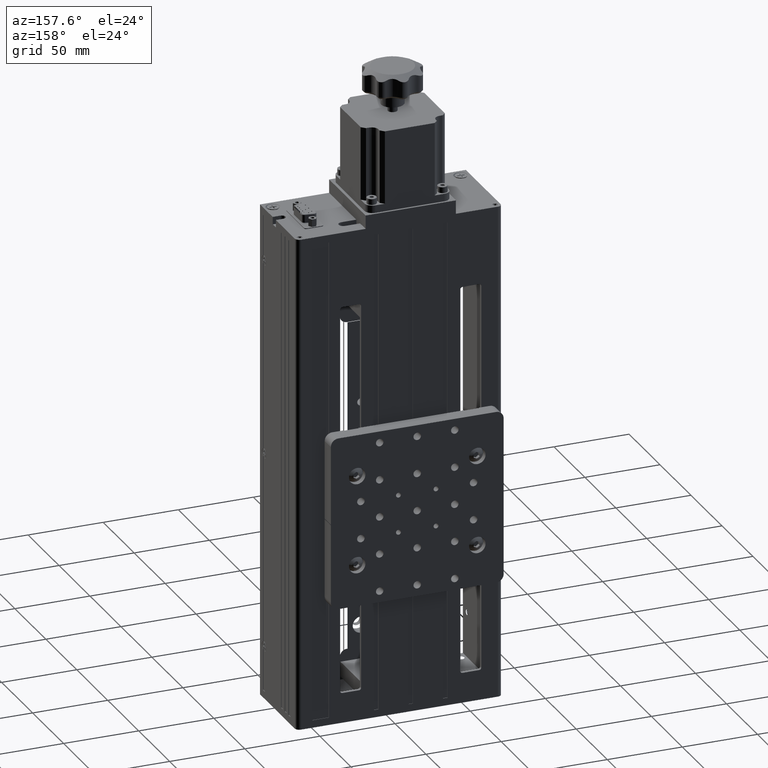
[diagram: clean part render]
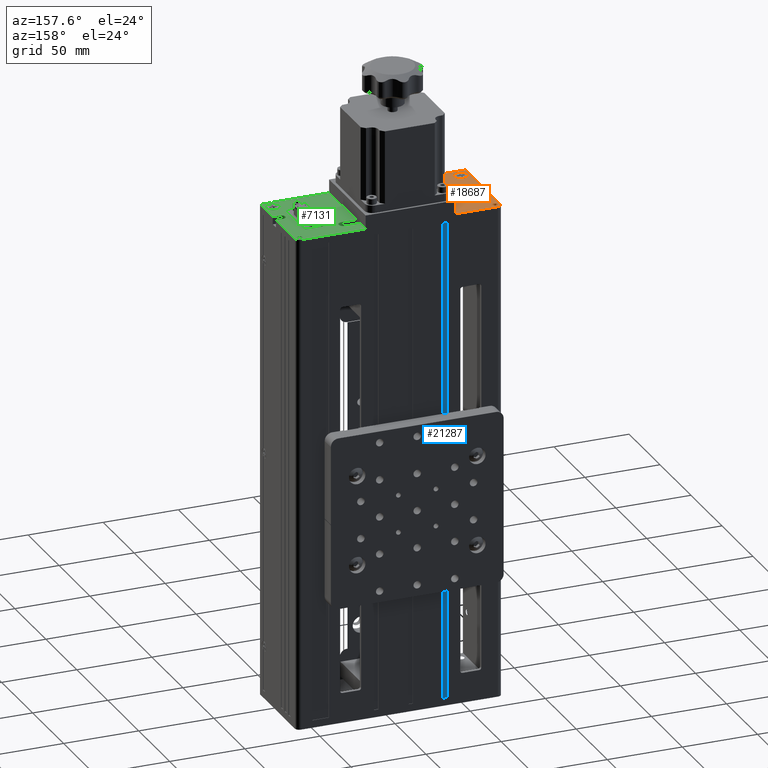
[diagram: same view with three faces highlighted in distinct colors, each labeled with its STEP entity id]
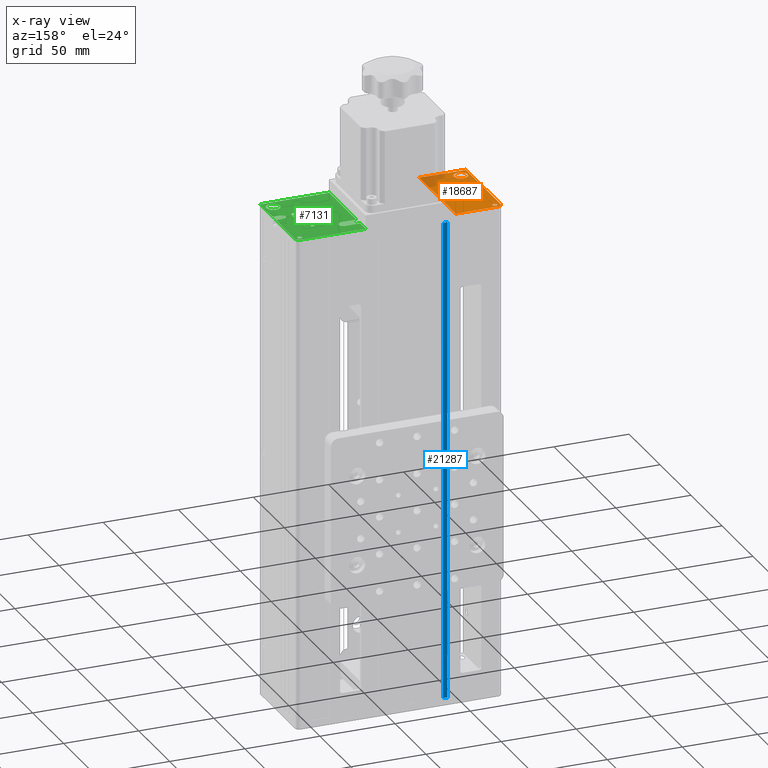
[diagram: x-ray of the same camera — body ghosted, the three highlighted faces saturated]
A machine part, auxiliary view with three faces highlighted in distinct colors.
The next image is the same camera in x-ray (body ghosted, the three faces saturated) — at least one of them is partly hidden behind the body in this view.
Their STEP definitions:

[orange] entity #18687 — the highlighted planar face has unit normal (0, 0, 1).
#150 = EDGE_LOOP ( 'NONE', ( #6136, #27126 ) ) ;
#406 = AXIS2_PLACEMENT_3D ( 'NONE', #34023, #14402, #37334 ) ;
#411 = CARTESIAN_POINT ( 'NONE',  ( -69.43011670107466700, 46.89557601279159400, 102.2392992934879300 ) ) ;
#784 = CIRCLE ( 'NONE', #24881, 3.000000000000002700 ) ;
#2652 = VECTOR ( 'NONE', #26707, 1000.000000000000000 ) ;
#2751 = EDGE_LOOP ( 'NONE', ( #8521, #25228 ) ) ;
#3940 = CARTESIAN_POINT ( 'NONE',  ( -69.98011670107466400, -2.104423987208394700, 102.2392992934879300 ) ) ;
#4119 = VECTOR ( 'NONE', #11053, 1000.000000000000000 ) ;
#4213 = DIRECTION ( 'NONE',  ( -0.0000000000000000000, -0.0000000000000000000, 1.000000000000000000 ) ) ;
#4555 = VECTOR ( 'NONE', #35136, 1000.000000000000000 ) ;
#5017 = FACE_OUTER_BOUND ( 'NONE', #6239, .T. ) ;
#6136 = ORIENTED_EDGE ( 'NONE', *, *, #29078, .F. ) ;
#6239 = EDGE_LOOP ( 'NONE', ( #18527, #20787, #20726, #23893, #7896 ) ) ;
#6473 = CIRCLE ( 'NONE', #37500, 4.699999999999995700 ) ;
#6759 = VERTEX_POINT ( 'NONE', #23510 ) ;
#7164 = CIRCLE ( 'NONE', #10221, 1.649999999999998600 ) ;
#7896 = ORIENTED_EDGE ( 'NONE', *, *, #15663, .T. ) ;
#8342 = EDGE_CURVE ( 'NONE', #34971, #18851, #13262, .T. ) ;
#8521 = ORIENTED_EDGE ( 'NONE', *, *, #29866, .F. ) ;
#9237 = DIRECTION ( 'NONE',  ( 0.0000000000000000000, 0.0000000000000000000, 1.000000000000000000 ) ) ;
#10221 = AXIS2_PLACEMENT_3D ( 'NONE', #18602, #41548, #21869 ) ;
#10228 = AXIS2_PLACEMENT_3D ( 'NONE', #23828, #4213, #27113 ) ;
#11053 = DIRECTION ( 'NONE',  ( 0.0000000000000000000, -1.000000000000000000, 0.0000000000000000000 ) ) ;
#11342 = LINE ( 'NONE', #13539, #2652 ) ;
#11429 = VERTEX_POINT ( 'NONE', #411 ) ;
#12224 = CARTESIAN_POINT ( 'NONE',  ( -40.28011670107467500, 50.39557601279160100, 102.2392992934879300 ) ) ;
#12685 = FACE_BOUND ( 'NONE', #150, .T. ) ;
#13038 = DIRECTION ( 'NONE',  ( -0.0000000000000000000, -0.0000000000000000000, 1.000000000000000000 ) ) ;
#13262 = LINE ( 'NONE', #12224, #4555 ) ;
#13539 = CARTESIAN_POINT ( 'NONE',  ( -40.28011670107466800, -8.604423987208388500, 102.2392992934879300 ) ) ;
#13725 = EDGE_CURVE ( 'NONE', #18124, #6759, #19660, .T. ) ;
#14402 = DIRECTION ( 'NONE',  ( 0.0000000000000000000, 0.0000000000000000000, 1.000000000000000000 ) ) ;
#15261 = CARTESIAN_POINT ( 'NONE',  ( -71.28011670107467500, 47.39557601279159400, 102.2392992934879300 ) ) ;
#15663 = EDGE_CURVE ( 'NONE', #18851, #38935, #37808, .T. ) ;
#16056 = DIRECTION ( 'NONE',  ( 0.0000000000000000000, 0.0000000000000000000, 1.000000000000000000 ) ) ;
#16607 = CARTESIAN_POINT ( 'NONE',  ( -66.13011670107467000, 46.89557601279159400, 102.2392992934879300 ) ) ;
#17877 = EDGE_CURVE ( 'NONE', #23350, #11429, #26156, .T. ) ;
#18124 = VERTEX_POINT ( 'NONE', #3940 ) ;
#18270 = CARTESIAN_POINT ( 'NONE',  ( -40.28011670107467500, 50.39557601279160100, 102.2392992934879300 ) ) ;
#18527 = ORIENTED_EDGE ( 'NONE', *, *, #19534, .T. ) ;
#18602 = CARTESIAN_POINT ( 'NONE',  ( -67.78011670107467500, 46.89557601279159400, 102.2392992934879300 ) ) ;
#18687 = ADVANCED_FACE ( 'NONE', ( #37834, #5017, #12685 ), #30584, .T. ) ;
#18851 = VERTEX_POINT ( 'NONE', #18270 ) ;
#19534 = EDGE_CURVE ( 'NONE', #38935, #20945, #784, .T. ) ;
#19619 = VERTEX_POINT ( 'NONE', #42415 ) ;
#19660 = CIRCLE ( 'NONE', #10228, 4.699999999999995700 ) ;
#20726 = ORIENTED_EDGE ( 'NONE', *, *, #36241, .T. ) ;
#20787 = ORIENTED_EDGE ( 'NONE', *, *, #28957, .T. ) ;
#20945 = VERTEX_POINT ( 'NONE', #15261 ) ;
#21260 = DIRECTION ( 'NONE',  ( -1.000000000000000000, 0.0000000000000000000, 0.0000000000000000000 ) ) ;
#21869 = DIRECTION ( 'NONE',  ( 1.000000000000000000, 0.0000000000000000000, 0.0000000000000000000 ) ) ;
#23350 = VERTEX_POINT ( 'NONE', #16607 ) ;
#23510 = CARTESIAN_POINT ( 'NONE',  ( -60.58011670107467200, -2.104423987208395200, 102.2392992934879300 ) ) ;
#23828 = CARTESIAN_POINT ( 'NONE',  ( -65.28011670107467500, -2.104423987208395200, 102.2392992934879300 ) ) ;
#23893 = ORIENTED_EDGE ( 'NONE', *, *, #8342, .T. ) ;
#24881 = AXIS2_PLACEMENT_3D ( 'NONE', #35677, #16056, #38964 ) ;
#24963 = VECTOR ( 'NONE', #21260, 1000.000000000000000 ) ;
#25228 = ORIENTED_EDGE ( 'NONE', *, *, #13725, .F. ) ;
#26156 = CIRCLE ( 'NONE', #38251, 1.649999999999998600 ) ;
#26707 = DIRECTION ( 'NONE',  ( 1.000000000000000000, 2.238352872228137700E-016, -0.0000000000000000000 ) ) ;
#27113 = DIRECTION ( 'NONE',  ( 1.000000000000000000, 0.0000000000000000000, 0.0000000000000000000 ) ) ;
#27126 = ORIENTED_EDGE ( 'NONE', *, *, #17877, .F. ) ;
#27354 = CARTESIAN_POINT ( 'NONE',  ( -71.28011670107467500, 47.39557601279159400, 102.2392992934879300 ) ) ;
#28910 = CARTESIAN_POINT ( 'NONE',  ( -67.78011670107467500, 46.89557601279159400, 102.2392992934879300 ) ) ;
#28957 = EDGE_CURVE ( 'NONE', #20945, #19619, #38973, .T. ) ;
#29018 = CARTESIAN_POINT ( 'NONE',  ( -68.28011670107467500, 50.39557601279160100, 102.2392992934879300 ) ) ;
#29078 = EDGE_CURVE ( 'NONE', #11429, #23350, #7164, .T. ) ;
#29444 = CARTESIAN_POINT ( 'NONE',  ( -40.28011670107466800, -8.604423987208388500, 102.2392992934879300 ) ) ;
#29866 = EDGE_CURVE ( 'NONE', #6759, #18124, #6473, .T. ) ;
#30584 = PLANE ( 'NONE',  #406 ) ;
#32162 = DIRECTION ( 'NONE',  ( 1.000000000000000000, 0.0000000000000000000, 0.0000000000000000000 ) ) ;
#32663 = CARTESIAN_POINT ( 'NONE',  ( -65.28011670107467500, -2.104423987208395200, 102.2392992934879300 ) ) ;
#34023 = CARTESIAN_POINT ( 'NONE',  ( -68.28011670107467500, 47.39557601279159400, 102.2392992934879300 ) ) ;
#34295 = CARTESIAN_POINT ( 'NONE',  ( -40.28011670107467500, 50.39557601279160100, 102.2392992934879300 ) ) ;
#34971 = VERTEX_POINT ( 'NONE', #29444 ) ;
#35136 = DIRECTION ( 'NONE',  ( -1.176083712526649200E-016, 1.000000000000000000, -0.0000000000000000000 ) ) ;
#35677 = CARTESIAN_POINT ( 'NONE',  ( -68.28011670107467500, 47.39557601279159400, 102.2392992934879300 ) ) ;
#35965 = DIRECTION ( 'NONE',  ( 1.000000000000000000, 0.0000000000000000000, 0.0000000000000000000 ) ) ;
#36241 = EDGE_CURVE ( 'NONE', #19619, #34971, #11342, .T. ) ;
#37334 = DIRECTION ( 'NONE',  ( 1.000000000000000000, 0.0000000000000000000, -0.0000000000000000000 ) ) ;
#37500 = AXIS2_PLACEMENT_3D ( 'NONE', #32663, #13038, #35965 ) ;
#37808 = LINE ( 'NONE', #34295, #24963 ) ;
#37834 = FACE_BOUND ( 'NONE', #2751, .T. ) ;
#38251 = AXIS2_PLACEMENT_3D ( 'NONE', #28910, #9237, #32162 ) ;
#38935 = VERTEX_POINT ( 'NONE', #29018 ) ;
#38964 = DIRECTION ( 'NONE',  ( 1.000000000000000000, 0.0000000000000000000, 0.0000000000000000000 ) ) ;
#38973 = LINE ( 'NONE', #27354, #4119 ) ;
#41548 = DIRECTION ( 'NONE',  ( 0.0000000000000000000, 0.0000000000000000000, 1.000000000000000000 ) ) ;
#42415 = CARTESIAN_POINT ( 'NONE',  ( -71.28011670107467500, -8.604423987208395600, 102.2392992934879300 ) ) ;

[blue] entity #21287 — the highlighted planar face has unit normal (0, 1, 0).
#890 = DIRECTION ( 'NONE',  ( 0.0000000000000000000, -0.0000000000000000000, 1.000000000000000000 ) ) ;
#8289 = VERTEX_POINT ( 'NONE', #21171 ) ;
#9421 = LINE ( 'NONE', #23555, #25811 ) ;
#11528 = AXIS2_PLACEMENT_3D ( 'NONE', #40154, #20480, #890 ) ;
#11600 = EDGE_CURVE ( 'NONE', #17947, #37883, #14884, .T. ) ;
#12668 = CARTESIAN_POINT ( 'NONE',  ( -34.78011670107464000, 50.09557601279237100, -222.7607007065120700 ) ) ;
#14884 = LINE ( 'NONE', #37208, #32291 ) ;
#17507 = LINE ( 'NONE', #19996, #18540 ) ;
#17569 = DIRECTION ( 'NONE',  ( 1.000000000000000000, 0.0000000000000000000, 0.0000000000000000000 ) ) ;
#17947 = VERTEX_POINT ( 'NONE', #12668 ) ;
#18540 = VECTOR ( 'NONE', #36338, 1000.000000000000000 ) ;
#19996 = CARTESIAN_POINT ( 'NONE',  ( -34.78011670107464000, 50.09557601279237100, 97.23929929348793200 ) ) ;
#20480 = DIRECTION ( 'NONE',  ( 0.0000000000000000000, 1.000000000000000000, 0.0000000000000000000 ) ) ;
#21091 = VERTEX_POINT ( 'NONE', #35859 ) ;
#21171 = CARTESIAN_POINT ( 'NONE',  ( -34.78011670107464000, 50.09557601279237100, 97.23929929348793200 ) ) ;
#21287 = ADVANCED_FACE ( 'NONE', ( #23088 ), #40008, .T. ) ;
#22103 = VECTOR ( 'NONE', #31660, 1000.000000000000000 ) ;
#23088 = FACE_OUTER_BOUND ( 'NONE', #26529, .T. ) ;
#23555 = CARTESIAN_POINT ( 'NONE',  ( -34.78011670107464000, 50.09557601279237100, 97.23929929348793200 ) ) ;
#25811 = VECTOR ( 'NONE', #36749, 1000.000000000000000 ) ;
#26529 = EDGE_LOOP ( 'NONE', ( #32806, #37612, #41376, #34759 ) ) ;
#28354 = EDGE_CURVE ( 'NONE', #8289, #17947, #17507, .T. ) ;
#30655 = EDGE_CURVE ( 'NONE', #8289, #21091, #9421, .T. ) ;
#31660 = DIRECTION ( 'NONE',  ( -0.0000000000000000000, -0.0000000000000000000, -1.000000000000000000 ) ) ;
#32291 = VECTOR ( 'NONE', #17569, 1000.000000000000000 ) ;
#32806 = ORIENTED_EDGE ( 'NONE', *, *, #11600, .F. ) ;
#34759 = ORIENTED_EDGE ( 'NONE', *, *, #35325, .T. ) ;
#34976 = CARTESIAN_POINT ( 'NONE',  ( -31.78011670107465400, 50.09557601279237100, 97.23929929348793200 ) ) ;
#35325 = EDGE_CURVE ( 'NONE', #21091, #37883, #40574, .T. ) ;
#35859 = CARTESIAN_POINT ( 'NONE',  ( -31.78011670107465400, 50.09557601279237100, 97.23929929348793200 ) ) ;
#36338 = DIRECTION ( 'NONE',  ( -0.0000000000000000000, -0.0000000000000000000, -1.000000000000000000 ) ) ;
#36749 = DIRECTION ( 'NONE',  ( 1.000000000000000000, 0.0000000000000000000, 0.0000000000000000000 ) ) ;
#37208 = CARTESIAN_POINT ( 'NONE',  ( -34.78011670107464000, 50.09557601279237100, -222.7607007065120700 ) ) ;
#37612 = ORIENTED_EDGE ( 'NONE', *, *, #28354, .F. ) ;
#37883 = VERTEX_POINT ( 'NONE', #40906 ) ;
#40008 = PLANE ( 'NONE',  #11528 ) ;
#40154 = CARTESIAN_POINT ( 'NONE',  ( -34.78011670107464000, 50.09557601279237100, 97.23929929348793200 ) ) ;
#40574 = LINE ( 'NONE', #34976, #22103 ) ;
#40906 = CARTESIAN_POINT ( 'NONE',  ( -31.78011670107465400, 50.09557601279237100, -222.7607007065120700 ) ) ;
#41376 = ORIENTED_EDGE ( 'NONE', *, *, #30655, .T. ) ;

[green] entity #7131 — the highlighted planar face has unit normal (0, 0, 1).
#334 = EDGE_CURVE ( 'NONE', #26870, #11991, #35482, .T. ) ;
#370 = DIRECTION ( 'NONE',  ( 0.0000000000000000000, 0.0000000000000000000, 1.000000000000000000 ) ) ;
#428 = DIRECTION ( 'NONE',  ( 1.000000000000000000, 0.0000000000000000000, 0.0000000000000000000 ) ) ;
#899 = CARTESIAN_POINT ( 'NONE',  ( 65.71988329892535300, 11.89557601279239300, 102.2392992934879300 ) ) ;
#944 = CARTESIAN_POINT ( 'NONE',  ( 29.71988329892531800, 38.39557601279239000, 102.2392992934879300 ) ) ;
#975 = DIRECTION ( 'NONE',  ( 1.577021341797097600E-016, -1.000000000000000000, 0.0000000000000000000 ) ) ;
#1294 = CARTESIAN_POINT ( 'NONE',  ( 51.71988329892533900, 30.89557601279239300, 102.2392992934879300 ) ) ;
#1392 = CARTESIAN_POINT ( 'NONE',  ( 29.71988329892531800, 38.39557601279239000, 102.2392992934879300 ) ) ;
#1468 = CARTESIAN_POINT ( 'NONE',  ( 60.71988329892534600, 11.89557601279239100, 102.2392992934879300 ) ) ;
#1548 = ORIENTED_EDGE ( 'NONE', *, *, #35636, .T. ) ;
#1736 = EDGE_CURVE ( 'NONE', #35500, #13263, #2828, .T. ) ;
#1764 = CARTESIAN_POINT ( 'NONE',  ( 42.71988329892534600, 28.89557601279239000, 102.2392992934879300 ) ) ;
#1884 = EDGE_CURVE ( 'NONE', #3114, #17157, #14535, .T. ) ;
#2194 = EDGE_CURVE ( 'NONE', #8828, #4174, #32418, .T. ) ;
#2344 = AXIS2_PLACEMENT_3D ( 'NONE', #18358, #41325, #21637 ) ;
#2828 = LINE ( 'NONE', #39347, #11537 ) ;
#2901 = VERTEX_POINT ( 'NONE', #13519 ) ;
#3036 = AXIS2_PLACEMENT_3D ( 'NONE', #1392, #24312, #4689 ) ;
#3114 = VERTEX_POINT ( 'NONE', #11678 ) ;
#3326 = CARTESIAN_POINT ( 'NONE',  ( 53.71988329892533900, 13.39557601279239300, 102.2392992934879300 ) ) ;
#3578 = CARTESIAN_POINT ( 'NONE',  ( 55.01988329892533600, -2.104423987207611400, 102.2392992934879300 ) ) ;
#3729 = DIRECTION ( 'NONE',  ( -0.0000000000000000000, -0.0000000000000000000, 1.000000000000000000 ) ) ;
#3788 = CIRCLE ( 'NONE', #36643, 2.000000000000001800 ) ;
#4174 = VERTEX_POINT ( 'NONE', #31752 ) ;
#4203 = DIRECTION ( 'NONE',  ( 0.0000000000000000000, 0.0000000000000000000, 1.000000000000000000 ) ) ;
#4215 = LINE ( 'NONE', #37131, #29351 ) ;
#4246 = DIRECTION ( 'NONE',  ( 1.000000000000000000, 0.0000000000000000000, -0.0000000000000000000 ) ) ;
#4529 = CARTESIAN_POINT ( 'NONE',  ( 48.21988329892533900, 8.645576012792391300, 102.2392992934879300 ) ) ;
#4608 = DIRECTION ( 'NONE',  ( 0.0000000000000000000, 0.0000000000000000000, 1.000000000000000000 ) ) ;
#4689 = DIRECTION ( 'NONE',  ( 1.000000000000000000, 0.0000000000000000000, 0.0000000000000000000 ) ) ;
#4772 = FACE_BOUND ( 'NONE', #35094, .T. ) ;
#4774 = CARTESIAN_POINT ( 'NONE',  ( 60.71988329892534600, 16.89557601279239300, 102.2392992934879300 ) ) ;
#4824 = VERTEX_POINT ( 'NONE', #8043 ) ;
#4863 = DIRECTION ( 'NONE',  ( 0.0000000000000000000, 0.0000000000000000000, 1.000000000000000000 ) ) ;
#5009 = EDGE_LOOP ( 'NONE', ( #10706, #40598, #5104, #11659, #6786, #18706, #28029, #34380, #1548, #20607, #23813, #35656, #32038 ) ) ;
#5104 = ORIENTED_EDGE ( 'NONE', *, *, #22881, .T. ) ;
#5165 = CARTESIAN_POINT ( 'NONE',  ( 49.35018329892533000, 8.645576012792391300, 102.2392992934879300 ) ) ;
#5632 = VECTOR ( 'NONE', #10810, 1000.000000000000000 ) ;
#5663 = AXIS2_PLACEMENT_3D ( 'NONE', #4529, #27459, #7828 ) ;
#5854 = EDGE_CURVE ( 'NONE', #2901, #33598, #25507, .T. ) ;
#5928 = CARTESIAN_POINT ( 'NONE',  ( 62.71988329892533200, 50.39557601279240400, 102.2392992934879300 ) ) ;
#6118 = EDGE_CURVE ( 'NONE', #17157, #3114, #18289, .T. ) ;
#6616 = ORIENTED_EDGE ( 'NONE', *, *, #16445, .F. ) ;
#6786 = ORIENTED_EDGE ( 'NONE', *, *, #334, .T. ) ;
#6874 = CARTESIAN_POINT ( 'NONE',  ( 48.21988329892533900, 33.64557601279239000, 102.2392992934879300 ) ) ;
#6897 = EDGE_CURVE ( 'NONE', #30154, #14425, #3788, .T. ) ;
#7131 = ADVANCED_FACE ( 'NONE', ( #30902, #39619, #24246, #22176, #13467, #4772 ), #27017, .T. ) ;
#7355 = CARTESIAN_POINT ( 'NONE',  ( 19.71988329892532500, 35.39557601279239000, 102.2392992934879300 ) ) ;
#7752 = ORIENTED_EDGE ( 'NONE', *, *, #2194, .F. ) ;
#7828 = DIRECTION ( 'NONE',  ( 1.000000000000000000, 0.0000000000000000000, 0.0000000000000000000 ) ) ;
#7851 = EDGE_CURVE ( 'NONE', #37849, #2901, #18482, .T. ) ;
#7865 = LINE ( 'NONE', #899, #41724 ) ;
#8043 = CARTESIAN_POINT ( 'NONE',  ( 65.71988329892535300, -8.604423987207603400, 102.2392992934879300 ) ) ;
#8067 = LINE ( 'NONE', #28339, #15750 ) ;
#8292 = ORIENTED_EDGE ( 'NONE', *, *, #1884, .F. ) ;
#8507 = CIRCLE ( 'NONE', #13125, 4.699999999999995700 ) ;
#8652 = CARTESIAN_POINT ( 'NONE',  ( 19.71988329892532500, 35.39557601279239000, 102.2392992934879300 ) ) ;
#8828 = VERTEX_POINT ( 'NONE', #34940 ) ;
#8903 = CARTESIAN_POINT ( 'NONE',  ( 59.71988329892533200, -2.104423987207611800, 102.2392992934879300 ) ) ;
#8978 = EDGE_CURVE ( 'NONE', #14918, #30154, #18294, .T. ) ;
#9394 = LINE ( 'NONE', #23903, #18118 ) ;
#9615 = AXIS2_PLACEMENT_3D ( 'NONE', #16185, #39115, #19492 ) ;
#9624 = CARTESIAN_POINT ( 'NONE',  ( 51.71988329892533900, 28.89557601279239300, 102.2392992934879300 ) ) ;
#9752 = ORIENTED_EDGE ( 'NONE', *, *, #19870, .F. ) ;
#9995 = CIRCLE ( 'NONE', #2344, 4.699999999999995700 ) ;
#10148 = DIRECTION ( 'NONE',  ( 1.000000000000000000, 0.0000000000000000000, 0.0000000000000000000 ) ) ;
#10224 = VERTEX_POINT ( 'NONE', #38451 ) ;
#10437 = LINE ( 'NONE', #33304, #41236 ) ;
#10610 = EDGE_CURVE ( 'NONE', #11991, #19705, #4215, .T. ) ;
#10650 = DIRECTION ( 'NONE',  ( -1.000000000000000000, -0.0000000000000000000, -0.0000000000000000000 ) ) ;
#10706 = ORIENTED_EDGE ( 'NONE', *, *, #7851, .F. ) ;
#10810 = DIRECTION ( 'NONE',  ( -6.195440985631452900E-017, 1.000000000000000000, -0.0000000000000000000 ) ) ;
#11022 = LINE ( 'NONE', #12215, #36107 ) ;
#11174 = EDGE_LOOP ( 'NONE', ( #19895, #8292 ) ) ;
#11232 = VERTEX_POINT ( 'NONE', #34789 ) ;
#11432 = CARTESIAN_POINT ( 'NONE',  ( 53.71988329892533900, 28.89557601279239300, 102.2392992934879300 ) ) ;
#11458 = CARTESIAN_POINT ( 'NONE',  ( 42.71988329892534600, 13.39557601279239100, 102.2392992934879300 ) ) ;
#11537 = VECTOR ( 'NONE', #23137, 1000.000000000000000 ) ;
#11659 = ORIENTED_EDGE ( 'NONE', *, *, #19979, .T. ) ;
#11678 = CARTESIAN_POINT ( 'NONE',  ( 47.08958329892535500, 8.645576012792391300, 102.2392992934879300 ) ) ;
#11881 = AXIS2_PLACEMENT_3D ( 'NONE', #33959, #14334, #37266 ) ;
#11991 = VERTEX_POINT ( 'NONE', #16536 ) ;
#12197 = DIRECTION ( 'NONE',  ( 1.000000000000000000, 0.0000000000000000000, 0.0000000000000000000 ) ) ;
#12215 = CARTESIAN_POINT ( 'NONE',  ( 44.71988329892534600, 11.39557601279239100, 102.2392992934879300 ) ) ;
#12331 = EDGE_LOOP ( 'NONE', ( #6616, #37246 ) ) ;
#12611 = CARTESIAN_POINT ( 'NONE',  ( 64.41988329892532800, -2.104423987207611800, 102.2392992934879300 ) ) ;
#12930 = DIRECTION ( 'NONE',  ( 1.000000000000000000, 0.0000000000000000000, 0.0000000000000000000 ) ) ;
#13041 = CARTESIAN_POINT ( 'NONE',  ( 47.08958329892535500, 33.64557601279239000, 102.2392992934879300 ) ) ;
#13125 = AXIS2_PLACEMENT_3D ( 'NONE', #8903, #31793, #12197 ) ;
#13159 = EDGE_CURVE ( 'NONE', #14425, #18280, #10437, .T. ) ;
#13263 = VERTEX_POINT ( 'NONE', #11432 ) ;
#13467 = FACE_BOUND ( 'NONE', #27361, .T. ) ;
#13519 = CARTESIAN_POINT ( 'NONE',  ( 60.71988329892534600, 16.89557601279239300, 102.2392992934879300 ) ) ;
#13625 = VECTOR ( 'NONE', #10650, 1000.000000000000000 ) ;
#13727 = EDGE_CURVE ( 'NONE', #33598, #19826, #7865, .T. ) ;
#13738 = CIRCLE ( 'NONE', #11881, 2.000000000000001800 ) ;
#14324 = EDGE_LOOP ( 'NONE', ( #32391, #26871 ) ) ;
#14334 = DIRECTION ( 'NONE',  ( 0.0000000000000000000, 0.0000000000000000000, 1.000000000000000000 ) ) ;
#14425 = VERTEX_POINT ( 'NONE', #1764 ) ;
#14535 = CIRCLE ( 'NONE', #5663, 1.130299999999986800 ) ;
#14698 = VERTEX_POINT ( 'NONE', #13041 ) ;
#14918 = VERTEX_POINT ( 'NONE', #1294 ) ;
#15023 = DIRECTION ( 'NONE',  ( -0.0000000000000000000, -0.0000000000000000000, 1.000000000000000000 ) ) ;
#15069 = CIRCLE ( 'NONE', #29417, 1.130299999999986800 ) ;
#15750 = VECTOR ( 'NONE', #31581, 1000.000000000000000 ) ;
#15964 = AXIS2_PLACEMENT_3D ( 'NONE', #944, #23873, #4246 ) ;
#16185 = CARTESIAN_POINT ( 'NONE',  ( 62.21988329892531800, 46.89557601279239000, 102.2392992934879300 ) ) ;
#16329 = CARTESIAN_POINT ( 'NONE',  ( 29.71988329892531800, 35.39557601279239000, 102.2392992934879300 ) ) ;
#16359 = EDGE_CURVE ( 'NONE', #4174, #8828, #27913, .T. ) ;
#16445 = EDGE_CURVE ( 'NONE', #36764, #14698, #15069, .T. ) ;
#16536 = CARTESIAN_POINT ( 'NONE',  ( 19.71988329892532500, 41.39557601279239700, 102.2392992934879300 ) ) ;
#17157 = VERTEX_POINT ( 'NONE', #5165 ) ;
#18118 = VECTOR ( 'NONE', #975, 1000.000000000000000 ) ;
#18159 = EDGE_CURVE ( 'NONE', #37849, #11232, #32779, .T. ) ;
#18280 = VERTEX_POINT ( 'NONE', #11458 ) ;
#18289 = CIRCLE ( 'NONE', #27554, 1.130299999999986800 ) ;
#18294 = LINE ( 'NONE', #22305, #34687 ) ;
#18358 = CARTESIAN_POINT ( 'NONE',  ( 59.71988329892533200, -2.104423987207611800, 102.2392992934879300 ) ) ;
#18442 = DIRECTION ( 'NONE',  ( -1.000000000000000000, -0.0000000000000000000, -0.0000000000000000000 ) ) ;
#18482 = LINE ( 'NONE', #4774, #28290 ) ;
#18706 = ORIENTED_EDGE ( 'NONE', *, *, #10610, .T. ) ;
#19404 = AXIS2_PLACEMENT_3D ( 'NONE', #19949, #370, #23240 ) ;
#19492 = DIRECTION ( 'NONE',  ( 1.000000000000000000, 0.0000000000000000000, 0.0000000000000000000 ) ) ;
#19705 = VERTEX_POINT ( 'NONE', #33201 ) ;
#19777 = ORIENTED_EDGE ( 'NONE', *, *, #36712, .F. ) ;
#19826 = VERTEX_POINT ( 'NONE', #34065 ) ;
#19870 = EDGE_CURVE ( 'NONE', #18280, #30489, #26331, .T. ) ;
#19895 = ORIENTED_EDGE ( 'NONE', *, *, #6118, .F. ) ;
#19949 = CARTESIAN_POINT ( 'NONE',  ( 62.21988329892531800, 46.89557601279239000, 102.2392992934879300 ) ) ;
#19979 = EDGE_CURVE ( 'NONE', #32276, #26870, #34526, .T. ) ;
#20008 = DIRECTION ( 'NONE',  ( 0.0000000000000000000, 0.0000000000000000000, 1.000000000000000000 ) ) ;
#20089 = ORIENTED_EDGE ( 'NONE', *, *, #6897, .F. ) ;
#20607 = ORIENTED_EDGE ( 'NONE', *, *, #36311, .T. ) ;
#20754 = ORIENTED_EDGE ( 'NONE', *, *, #24317, .F. ) ;
#20946 = CARTESIAN_POINT ( 'NONE',  ( 19.71988329892533200, -8.604423987207606900, 102.2392992934879300 ) ) ;
#20948 = CIRCLE ( 'NONE', #30993, 2.000000000000001800 ) ;
#21417 = ORIENTED_EDGE ( 'NONE', *, *, #26283, .F. ) ;
#21637 = DIRECTION ( 'NONE',  ( 1.000000000000000000, 0.0000000000000000000, 0.0000000000000000000 ) ) ;
#21761 = VERTEX_POINT ( 'NONE', #3578 ) ;
#22176 = FACE_BOUND ( 'NONE', #14324, .T. ) ;
#22305 = CARTESIAN_POINT ( 'NONE',  ( 44.71988329892534600, 30.89557601279239300, 102.2392992934879300 ) ) ;
#22876 = EDGE_CURVE ( 'NONE', #23302, #28558, #39769, .T. ) ;
#22881 = EDGE_CURVE ( 'NONE', #11232, #32276, #32080, .T. ) ;
#23063 = EDGE_CURVE ( 'NONE', #21761, #28650, #9995, .T. ) ;
#23137 = DIRECTION ( 'NONE',  ( -0.0000000000000000000, 1.000000000000000000, -0.0000000000000000000 ) ) ;
#23240 = DIRECTION ( 'NONE',  ( 1.000000000000000000, 0.0000000000000000000, 0.0000000000000000000 ) ) ;
#23302 = VERTEX_POINT ( 'NONE', #16329 ) ;
#23310 = CARTESIAN_POINT ( 'NONE',  ( 48.21988329892533900, 33.64557601279239000, 102.2392992934879300 ) ) ;
#23813 = ORIENTED_EDGE ( 'NONE', *, *, #29560, .T. ) ;
#23818 = CARTESIAN_POINT ( 'NONE',  ( 62.71988329892533200, 47.39557601279240400, 102.2392992934879300 ) ) ;
#23873 = DIRECTION ( 'NONE',  ( 0.0000000000000000000, 0.0000000000000000000, 1.000000000000000000 ) ) ;
#23903 = CARTESIAN_POINT ( 'NONE',  ( 19.71988329892532500, 35.39557601279239000, 102.2392992934879300 ) ) ;
#24068 = DIRECTION ( 'NONE',  ( 1.000000000000000000, 0.0000000000000000000, 0.0000000000000000000 ) ) ;
#24234 = CARTESIAN_POINT ( 'NONE',  ( 44.71988329892534600, 28.89557601279239300, 102.2392992934879300 ) ) ;
#24246 = FACE_BOUND ( 'NONE', #12331, .T. ) ;
#24272 = DIRECTION ( 'NONE',  ( 1.000000000000000000, 7.542275982507854700E-017, 0.0000000000000000000 ) ) ;
#24312 = DIRECTION ( 'NONE',  ( -0.0000000000000000000, -0.0000000000000000000, -1.000000000000000000 ) ) ;
#24317 = EDGE_CURVE ( 'NONE', #30489, #26165, #11022, .T. ) ;
#24477 = CARTESIAN_POINT ( 'NONE',  ( 44.71988329892534600, 13.39557601279239100, 102.2392992934879300 ) ) ;
#24547 = ORIENTED_EDGE ( 'NONE', *, *, #16359, .F. ) ;
#25230 = EDGE_CURVE ( 'NONE', #19705, #23302, #33951, .T. ) ;
#25507 = CIRCLE ( 'NONE', #31385, 2.500000000000002200 ) ;
#25807 = VECTOR ( 'NONE', #18442, 1000.000000000000000 ) ;
#26165 = VERTEX_POINT ( 'NONE', #29262 ) ;
#26283 = EDGE_CURVE ( 'NONE', #26165, #35500, #13738, .T. ) ;
#26299 = CARTESIAN_POINT ( 'NONE',  ( 44.71988329892534600, 11.39557601279239100, 102.2392992934879300 ) ) ;
#26331 = CIRCLE ( 'NONE', #36393, 2.000000000000001800 ) ;
#26606 = DIRECTION ( 'NONE',  ( 1.000000000000000000, 0.0000000000000000000, 0.0000000000000000000 ) ) ;
#26870 = VERTEX_POINT ( 'NONE', #27185 ) ;
#26871 = ORIENTED_EDGE ( 'NONE', *, *, #23063, .F. ) ;
#27017 = PLANE ( 'NONE',  #15964 ) ;
#27105 = DIRECTION ( 'NONE',  ( 1.000000000000000000, 0.0000000000000000000, 0.0000000000000000000 ) ) ;
#27116 = CARTESIAN_POINT ( 'NONE',  ( 65.71988329892533900, 47.39557601279240400, 102.2392992934879300 ) ) ;
#27185 = CARTESIAN_POINT ( 'NONE',  ( 19.71988329892532100, 50.39557601279240400, 102.2392992934879300 ) ) ;
#27361 = EDGE_LOOP ( 'NONE', ( #20754, #9752, #37081, #20089, #40715, #19777, #42297, #21417 ) ) ;
#27459 = DIRECTION ( 'NONE',  ( -0.0000000000000000000, -0.0000000000000000000, 1.000000000000000000 ) ) ;
#27538 = DIRECTION ( 'NONE',  ( -1.000000000000000000, 0.0000000000000000000, 0.0000000000000000000 ) ) ;
#27554 = AXIS2_PLACEMENT_3D ( 'NONE', #34618, #15023, #37940 ) ;
#27702 = AXIS2_PLACEMENT_3D ( 'NONE', #23310, #3729, #26606 ) ;
#27803 = DIRECTION ( 'NONE',  ( 1.000000000000000000, 0.0000000000000000000, 0.0000000000000000000 ) ) ;
#27913 = CIRCLE ( 'NONE', #9615, 1.649999999999998600 ) ;
#28029 = ORIENTED_EDGE ( 'NONE', *, *, #25230, .T. ) ;
#28290 = VECTOR ( 'NONE', #41186, 1000.000000000000000 ) ;
#28339 = CARTESIAN_POINT ( 'NONE',  ( 65.71988329892533900, 47.39557601279240400, 102.2392992934879300 ) ) ;
#28558 = VERTEX_POINT ( 'NONE', #8652 ) ;
#28650 = VERTEX_POINT ( 'NONE', #12611 ) ;
#28830 = CARTESIAN_POINT ( 'NONE',  ( 19.71988329892532100, 50.39557601279240400, 102.2392992934879300 ) ) ;
#29262 = CARTESIAN_POINT ( 'NONE',  ( 51.71988329892534600, 11.39557601279239100, 102.2392992934879300 ) ) ;
#29279 = CARTESIAN_POINT ( 'NONE',  ( 49.35018329892533000, 33.64557601279239000, 102.2392992934879300 ) ) ;
#29351 = VECTOR ( 'NONE', #24068, 1000.000000000000000 ) ;
#29417 = AXIS2_PLACEMENT_3D ( 'NONE', #6874, #29781, #10148 ) ;
#29560 = EDGE_CURVE ( 'NONE', #4824, #19826, #8067, .T. ) ;
#29781 = DIRECTION ( 'NONE',  ( -0.0000000000000000000, -0.0000000000000000000, 1.000000000000000000 ) ) ;
#30154 = VERTEX_POINT ( 'NONE', #34069 ) ;
#30489 = VERTEX_POINT ( 'NONE', #26299 ) ;
#30902 = FACE_OUTER_BOUND ( 'NONE', #5009, .T. ) ;
#30993 = AXIS2_PLACEMENT_3D ( 'NONE', #9624, #32561, #12930 ) ;
#31385 = AXIS2_PLACEMENT_3D ( 'NONE', #39655, #20008, #428 ) ;
#31509 = CIRCLE ( 'NONE', #27702, 1.130299999999986800 ) ;
#31581 = DIRECTION ( 'NONE',  ( -6.195440985631452900E-017, 1.000000000000000000, -0.0000000000000000000 ) ) ;
#31632 = EDGE_CURVE ( 'NONE', #28650, #21761, #8507, .T. ) ;
#31752 = CARTESIAN_POINT ( 'NONE',  ( 63.86988329892531600, 46.89557601279239000, 102.2392992934879300 ) ) ;
#31793 = DIRECTION ( 'NONE',  ( -0.0000000000000000000, -0.0000000000000000000, 1.000000000000000000 ) ) ;
#31867 = EDGE_CURVE ( 'NONE', #14698, #36764, #31509, .T. ) ;
#32038 = ORIENTED_EDGE ( 'NONE', *, *, #5854, .F. ) ;
#32080 = CIRCLE ( 'NONE', #36858, 3.000000000000002700 ) ;
#32276 = VERTEX_POINT ( 'NONE', #5928 ) ;
#32391 = ORIENTED_EDGE ( 'NONE', *, *, #31632, .F. ) ;
#32418 = CIRCLE ( 'NONE', #19404, 1.649999999999998600 ) ;
#32561 = DIRECTION ( 'NONE',  ( 0.0000000000000000000, 0.0000000000000000000, 1.000000000000000000 ) ) ;
#32779 = LINE ( 'NONE', #27116, #5632 ) ;
#33201 = CARTESIAN_POINT ( 'NONE',  ( 29.71988329892531800, 41.39557601279239700, 102.2392992934879300 ) ) ;
#33304 = CARTESIAN_POINT ( 'NONE',  ( 42.71988329892534600, 28.89557601279239000, 102.2392992934879300 ) ) ;
#33598 = VERTEX_POINT ( 'NONE', #1468 ) ;
#33951 = CIRCLE ( 'NONE', #3036, 3.000000000000002700 ) ;
#33959 = CARTESIAN_POINT ( 'NONE',  ( 51.71988329892534600, 13.39557601279239100, 102.2392992934879300 ) ) ;
#34065 = CARTESIAN_POINT ( 'NONE',  ( 65.71988329892535300, 11.89557601279239700, 102.2392992934879300 ) ) ;
#34069 = CARTESIAN_POINT ( 'NONE',  ( 44.71988329892534600, 30.89557601279239300, 102.2392992934879300 ) ) ;
#34380 = ORIENTED_EDGE ( 'NONE', *, *, #22876, .T. ) ;
#34443 = VECTOR ( 'NONE', #41983, 1000.000000000000000 ) ;
#34526 = LINE ( 'NONE', #41410, #25807 ) ;
#34618 = CARTESIAN_POINT ( 'NONE',  ( 48.21988329892533900, 8.645576012792391300, 102.2392992934879300 ) ) ;
#34687 = VECTOR ( 'NONE', #38931, 1000.000000000000000 ) ;
#34789 = CARTESIAN_POINT ( 'NONE',  ( 65.71988329892533900, 47.39557601279240400, 102.2392992934879300 ) ) ;
#34940 = CARTESIAN_POINT ( 'NONE',  ( 60.56988329892531900, 46.89557601279239000, 102.2392992934879300 ) ) ;
#35094 = EDGE_LOOP ( 'NONE', ( #7752, #24547 ) ) ;
#35129 = DIRECTION ( 'NONE',  ( 1.000000000000000000, 0.0000000000000000000, 0.0000000000000000000 ) ) ;
#35482 = LINE ( 'NONE', #28830, #34443 ) ;
#35500 = VERTEX_POINT ( 'NONE', #3326 ) ;
#35636 = EDGE_CURVE ( 'NONE', #28558, #10224, #9394, .T. ) ;
#35656 = ORIENTED_EDGE ( 'NONE', *, *, #13727, .F. ) ;
#36107 = VECTOR ( 'NONE', #35129, 1000.000000000000000 ) ;
#36311 = EDGE_CURVE ( 'NONE', #10224, #4824, #40028, .T. ) ;
#36393 = AXIS2_PLACEMENT_3D ( 'NONE', #24477, #4863, #27803 ) ;
#36474 = DIRECTION ( 'NONE',  ( 2.238352872228138700E-016, -1.000000000000000000, 0.0000000000000000000 ) ) ;
#36643 = AXIS2_PLACEMENT_3D ( 'NONE', #24234, #4608, #27538 ) ;
#36712 = EDGE_CURVE ( 'NONE', #13263, #14918, #20948, .T. ) ;
#36764 = VERTEX_POINT ( 'NONE', #29279 ) ;
#36858 = AXIS2_PLACEMENT_3D ( 'NONE', #23818, #4203, #27105 ) ;
#36945 = VECTOR ( 'NONE', #24272, 1000.000000000000000 ) ;
#37081 = ORIENTED_EDGE ( 'NONE', *, *, #13159, .F. ) ;
#37131 = CARTESIAN_POINT ( 'NONE',  ( 19.71988329892532500, 41.39557601279239700, 102.2392992934879300 ) ) ;
#37246 = ORIENTED_EDGE ( 'NONE', *, *, #31867, .F. ) ;
#37266 = DIRECTION ( 'NONE',  ( -1.000000000000000000, 0.0000000000000000000, 0.0000000000000000000 ) ) ;
#37314 = CARTESIAN_POINT ( 'NONE',  ( 65.71988329892535300, 16.89557601279239300, 102.2392992934879300 ) ) ;
#37849 = VERTEX_POINT ( 'NONE', #37314 ) ;
#37940 = DIRECTION ( 'NONE',  ( 1.000000000000000000, 0.0000000000000000000, 0.0000000000000000000 ) ) ;
#38451 = CARTESIAN_POINT ( 'NONE',  ( 19.71988329892533200, -8.604423987207606900, 102.2392992934879300 ) ) ;
#38931 = DIRECTION ( 'NONE',  ( -1.000000000000000000, -0.0000000000000000000, -0.0000000000000000000 ) ) ;
#39115 = DIRECTION ( 'NONE',  ( 0.0000000000000000000, 0.0000000000000000000, 1.000000000000000000 ) ) ;
#39347 = CARTESIAN_POINT ( 'NONE',  ( 53.71988329892533900, 28.89557601279239300, 102.2392992934879300 ) ) ;
#39619 = FACE_BOUND ( 'NONE', #11174, .T. ) ;
#39655 = CARTESIAN_POINT ( 'NONE',  ( 60.71988329892534600, 14.39557601279239500, 102.2392992934879300 ) ) ;
#39769 = LINE ( 'NONE', #7355, #13625 ) ;
#40028 = LINE ( 'NONE', #20946, #36945 ) ;
#40169 = DIRECTION ( 'NONE',  ( 1.000000000000000000, 3.469446951953613700E-016, -0.0000000000000000000 ) ) ;
#40598 = ORIENTED_EDGE ( 'NONE', *, *, #18159, .T. ) ;
#40715 = ORIENTED_EDGE ( 'NONE', *, *, #8978, .F. ) ;
#41186 = DIRECTION ( 'NONE',  ( -1.000000000000000000, -0.0000000000000000000, -0.0000000000000000000 ) ) ;
#41236 = VECTOR ( 'NONE', #36474, 1000.000000000000000 ) ;
#41325 = DIRECTION ( 'NONE',  ( -0.0000000000000000000, -0.0000000000000000000, 1.000000000000000000 ) ) ;
#41410 = CARTESIAN_POINT ( 'NONE',  ( 19.71988329892532100, 50.39557601279240400, 102.2392992934879300 ) ) ;
#41724 = VECTOR ( 'NONE', #40169, 1000.000000000000000 ) ;
#41983 = DIRECTION ( 'NONE',  ( 3.854941057726233200E-016, -1.000000000000000000, 0.0000000000000000000 ) ) ;
#42297 = ORIENTED_EDGE ( 'NONE', *, *, #1736, .F. ) ;